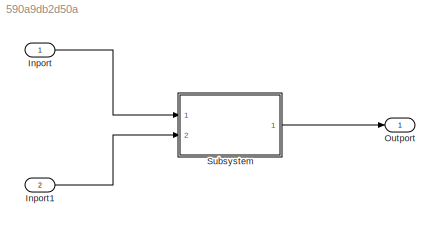
MODEL slx_590a9db2d50a
KIND model
CONFIG AbsTol = auto
CONFIG EnableMultiTasking = off
CONFIG FixedStep = auto
CONFIG MaxStep = auto
CONFIG MinStep = auto
CONFIG RelTol = 1e-3
CONFIG SampleTimeConstraint = Unconstrained
CONFIG SolverName = VariableStepAuto
CONFIG StartTime = 0.0
CONFIG StopTime = 10.0
BLOCK [Inport] Inport
  OutDataTypeStr = double
  PortDimensions = 1
  SampleTime = [0.20000000000000001,0]
  SamplingMode = Sample based
  SignalType = real
BLOCK [Inport] Inport1
  OutDataTypeStr = double
  Port = 2
  PortDimensions = 1
  SampleTime = [0.20000000000000001,0]
  SamplingMode = Sample based
  SignalType = real
BLOCK [Outport] Outport
  OutDataTypeStr = double
  PortDimensions = 1
  SampleTime = [0.20000000000000001,0]
  SamplingMode = Sample based
  SignalType = real
BLOCK [ModelReference] Subsystem
  ModelNameDialog = Subsystem0
  ModelReferenceVersion = 1.1
  Ports = [2, 1]
LINE Inport1:1 -> Subsystem:2
LINE Inport:1 -> Subsystem:1
LINE Subsystem:1 -> Outport:1
